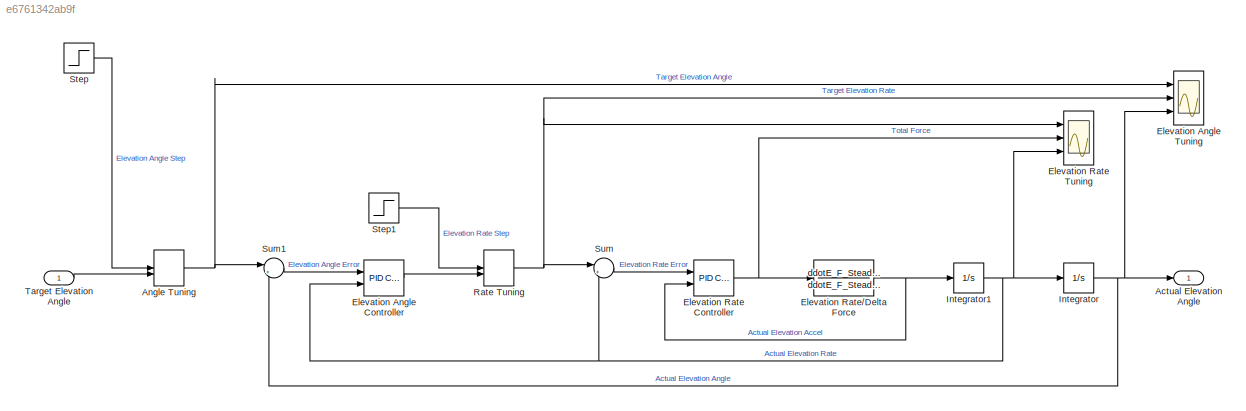
MODEL slx_e6761342ab9f
KIND model
CONFIG AbsTol = auto
CONFIG EnableMultiTasking = off
CONFIG FixedStep = auto
CONFIG MaxStep = auto
CONFIG MinStep = auto
CONFIG RelTol = 1e-3
CONFIG SampleTimeConstraint = Unconstrained
CONFIG Solver = VariableStepAuto
CONFIG SolverName = VariableStepAuto
CONFIG StartTime = 0.0
CONFIG StopTime = 25.0
BLOCK [Outport] Actual Elevation Angle
BLOCK [ManualSwitch] Angle Tuning
BLOCK [Reference] Elevation Angle Controller  REF=simulink/Continuous/PID Controller
  Ports = [2, 1]
  SourceBlock = simulink/Continuous/PID Controller
  SourceType = PID 1dof
BLOCK [Scope] Elevation Angle Tuning
  DefaultConfigurationName = spbscopes.TimeScopeBlockCfg
  Floating = off
  NumInputPorts = 3
  Ports = [3]
  ScopeSpecificationString = spbscopes.TimeScopeBlockCfg('CurrentConfiguration', extmgr.ConfigurationSet(extmgr.Configuration('Core','General UI',true,'FigureColor',[0.156862745098039 0.156862745098039 0.156862745098039]),extmgr.Configuration('Core','Source UI',true),extmgr.Configuration('Sources','WiredSimulink',true,'DataLoggingVariableName','ScopeData1'),extmgr.Configuration('Visuals','Time Domain',true,'DisplayPropertyDef...<+1726ch>
  UserDataPersistent = on
BLOCK [Reference] Elevation Rate Controller  REF=simulink/Continuous/PID Controller
  Ports = [2, 1]
  SourceBlock = simulink/Continuous/PID Controller
  SourceType = PID 1dof
BLOCK [Scope] Elevation Rate Tuning
  DefaultConfigurationName = spbscopes.TimeScopeBlockCfg
  Floating = off
  NumInputPorts = 3
  Ports = [3]
  ScopeSpecificationString = spbscopes.TimeScopeBlockCfg('CurrentConfiguration', extmgr.ConfigurationSet(extmgr.Configuration('Core','General UI',true,'FigureColor',[0.156862745098039 0.156862745098039 0.156862745098039]),extmgr.Configuration('Core','Source UI',true),extmgr.Configuration('Sources','WiredSimulink',true),extmgr.Configuration('Visuals','Time Domain',true,'DisplayPropertyDefaults',struct('MinYLimReal','-1.86819',...<+1652ch>
  UserDataPersistent = on
BLOCK [TransferFcn] Elevation Rate//Delta Force
  Denominator = ddotE_F_Steady_den
  Numerator = ddotE_F_Steady_num
BLOCK [Integrator] Integrator
  Ports = [1, 1]
BLOCK [Integrator] Integrator1
  Ports = [1, 1]
BLOCK [ManualSwitch] Rate Tuning
  CurrentSetting = 0
BLOCK [Step] Step
  After = 24.5 * pi/180
  SampleTime = 0
BLOCK [Step] Step1
  After = pi/2
  SampleTime = 0
  Time = 0
BLOCK [Sum] Sum
  Inputs = |+-
  Ports = [2, 1]
BLOCK [Sum] Sum1
  Inputs = |+-
  Ports = [2, 1]
BLOCK [Inport] Target Elevation  Angle
NET Angle Tuning:1 -> Elevation Angle Tuning:1, Sum1:1
LINE Elevation Angle Controller:1 -> Rate Tuning:2
NET Elevation Rate Controller:1 -> Elevation Rate Tuning:2, Elevation Rate//Delta Force:1
NET Elevation Rate//Delta Force:1 -> Elevation Rate Controller:2, Integrator1:1
NET Integrator1:1 -> Elevation Angle Controller:2, Elevation Rate Tuning:3, Integrator:1, Sum:2
NET Integrator:1 -> Actual Elevation Angle:1, Elevation Angle Tuning:3, Sum1:2
NET Rate Tuning:1 -> Elevation Angle Tuning:2, Elevation Rate Tuning:1, Sum:1
LINE Step1:1 -> Rate Tuning:1
LINE Step:1 -> Angle Tuning:1
LINE Sum1:1 -> Elevation Angle Controller:1
LINE Sum:1 -> Elevation Rate Controller:1
LINE Target Elevation  Angle:1 -> Angle Tuning:2
note: NET lines group one-source signal fan-out (src -> all destinations, sorted); 1:1 wires keep LINE
